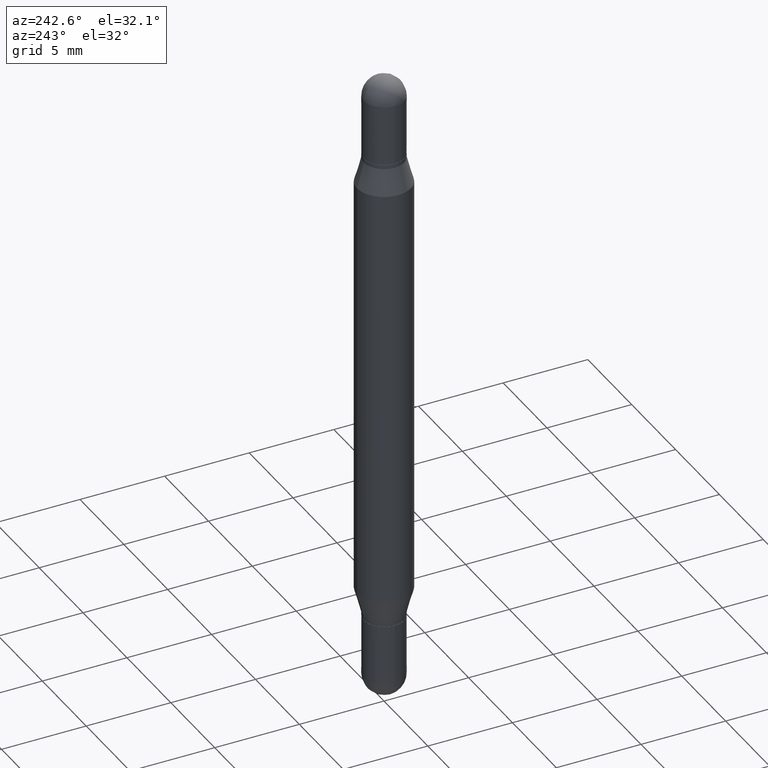
[diagram: clean part render]
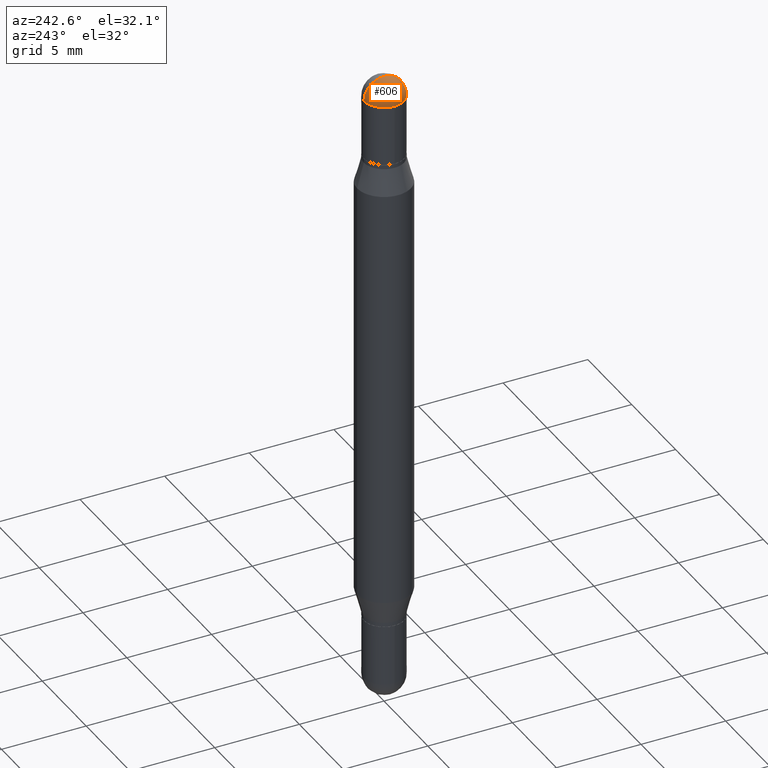
[diagram: same view with one face highlighted and labeled with its STEP entity id]
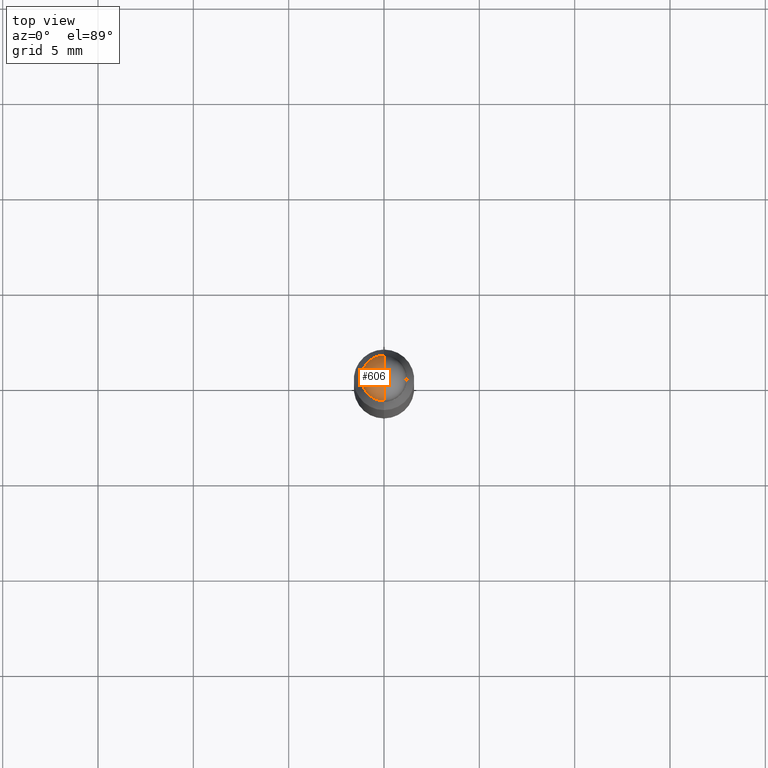
[diagram: same view with one face highlighted and labeled with its STEP entity id]
A machine part, auxiliary view. The second image highlights one B-rep face of the part: STEP entity #606.
A second angle (top view) of the same face is appended — the face is thin or edge-on in the first view.
In plain terms, the highlighted spherical surface has radius 1.1913 mm.
Its self-contained STEP definition (entity closure, byte-faithful):
#49 = FACE_OUTER_BOUND ( 'NONE', #341, .T. ) ;
#77 = CIRCLE ( 'NONE', #859, 0.04690000000000013602 ) ;
#87 = VERTEX_POINT ( 'NONE', #1068 ) ;
#100 = ORIENTED_EDGE ( 'NONE', *, *, #669, .F. ) ;
#139 = EDGE_CURVE ( 'NONE', #537, #1002, #77, .T. ) ;
#142 = AXIS2_PLACEMENT_3D ( 'NONE', #474, #817, #965 ) ;
#156 = DIRECTION ( 'NONE',  ( -6.860497997771530774E-15, -1.000000000000000000, 0.000000000000000000 ) ) ;
#206 = DIRECTION ( 'NONE',  ( 6.982962677686265133E-15, 1.000000000000000000, 0.000000000000000000 ) ) ;
#223 = DIRECTION ( 'NONE',  ( 1.000000000000000000, -6.982962677686265922E-15, -1.566701062080016245E-31 ) ) ;
#241 = ORIENTED_EDGE ( 'NONE', *, *, #521, .T. ) ;
#270 = ORIENTED_EDGE ( 'NONE', *, *, #139, .T. ) ;
#293 = AXIS2_PLACEMENT_3D ( 'NONE', #442, #223, #206 ) ;
#298 = VERTEX_POINT ( 'NONE', #876 ) ;
#299 = CARTESIAN_POINT ( 'NONE',  ( 3.553510722267622201E-29, -1.720940724002502970E-16, -0.04690000000000053154 ) ) ;
#341 = EDGE_LOOP ( 'NONE', ( #100, #270, #241, #574 ) ) ;
#357 = CIRCLE ( 'NONE', #505, 0.04689999999999999725 ) ;
#364 = DIRECTION ( 'NONE',  ( 2.445468806185136597E-29, 3.479614466977828254E-15, 1.000000000000000000 ) ) ;
#373 = AXIS2_PLACEMENT_3D ( 'NONE', #299, #364, #793 ) ;
#406 = DIRECTION ( 'NONE',  ( -1.000000000000000000, 6.860497997771530774E-15, 5.827999781331232286E-31 ) ) ;
#428 = CIRCLE ( 'NONE', #373, 0.04689999999999999725 ) ;
#442 = CARTESIAN_POINT ( 'NONE',  ( 3.549499992371371099E-29, -1.778376658882507705E-16, -0.04690000000000025399 ) ) ;
#455 = DIRECTION ( 'NONE',  ( 1.000000000000000000, -6.982962677686266711E-15, 0.000000000000000000 ) ) ;
#474 = CARTESIAN_POINT ( 'NONE',  ( 3.549499992371371099E-29, -1.778376658882507705E-16, -0.04690000000000025399 ) ) ;
#505 = AXIS2_PLACEMENT_3D ( 'NONE', #1061, #891, #455 ) ;
#521 = EDGE_CURVE ( 'NONE', #1002, #87, #428, .T. ) ;
#537 = VERTEX_POINT ( 'NONE', #704 ) ;
#564 = EDGE_CURVE ( 'NONE', #87, #298, #357, .T. ) ;
#574 = ORIENTED_EDGE ( 'NONE', *, *, #564, .T. ) ;
#585 = CIRCLE ( 'NONE', #293, 0.04690000000000013602 ) ;
#606 = ADVANCED_FACE ( 'NONE', ( #49 ), #877, .T. ) ;
#639 = CARTESIAN_POINT ( 'NONE',  ( 3.217573560955207797E-16, 0.04689999999999990010, -0.04690000000000069114 ) ) ;
#669 = EDGE_CURVE ( 'NONE', #537, #298, #585, .T. ) ;
#704 = CARTESIAN_POINT ( 'NONE',  ( 3.662187114433328241E-29, -1.751554413099070675E-17, -1.195183497228115035E-16 ) ) ;
#793 = DIRECTION ( 'NONE',  ( 1.000000000000000000, -6.982962677686266711E-15, 0.000000000000000000 ) ) ;
#817 = DIRECTION ( 'NONE',  ( -1.000000000000000000, 6.982962677686265922E-15, 1.566701062079987781E-31 ) ) ;
#859 = AXIS2_PLACEMENT_3D ( 'NONE', #1108, #406, #156 ) ;
#876 = CARTESIAN_POINT ( 'NONE',  ( -3.275009495834508474E-16, -0.04690000000000024011, -0.04690000000000036501 ) ) ;
#877 = SPHERICAL_SURFACE ( 'NONE', #142, 0.04690000000000013602 ) ;
#891 = DIRECTION ( 'NONE',  ( 2.445468806185136597E-29, 3.479614466977828254E-15, 1.000000000000000000 ) ) ;
#965 = DIRECTION ( 'NONE',  ( -6.982962677686265922E-15, -1.000000000000000000, 3.458496260635717735E-15 ) ) ;
#1002 = VERTEX_POINT ( 'NONE', #639 ) ;
#1061 = CARTESIAN_POINT ( 'NONE',  ( 3.553510722267622201E-29, -1.720940724002502970E-16, -0.04690000000000053154 ) ) ;
#1068 = CARTESIAN_POINT ( 'NONE',  ( -0.04689999999999999725, -9.408370971656128076E-17, -0.04690000000000053154 ) ) ;
#1108 = CARTESIAN_POINT ( 'NONE',  ( 3.549499992371371099E-29, -1.778376658882507705E-16, -0.04690000000000025399 ) ) ;